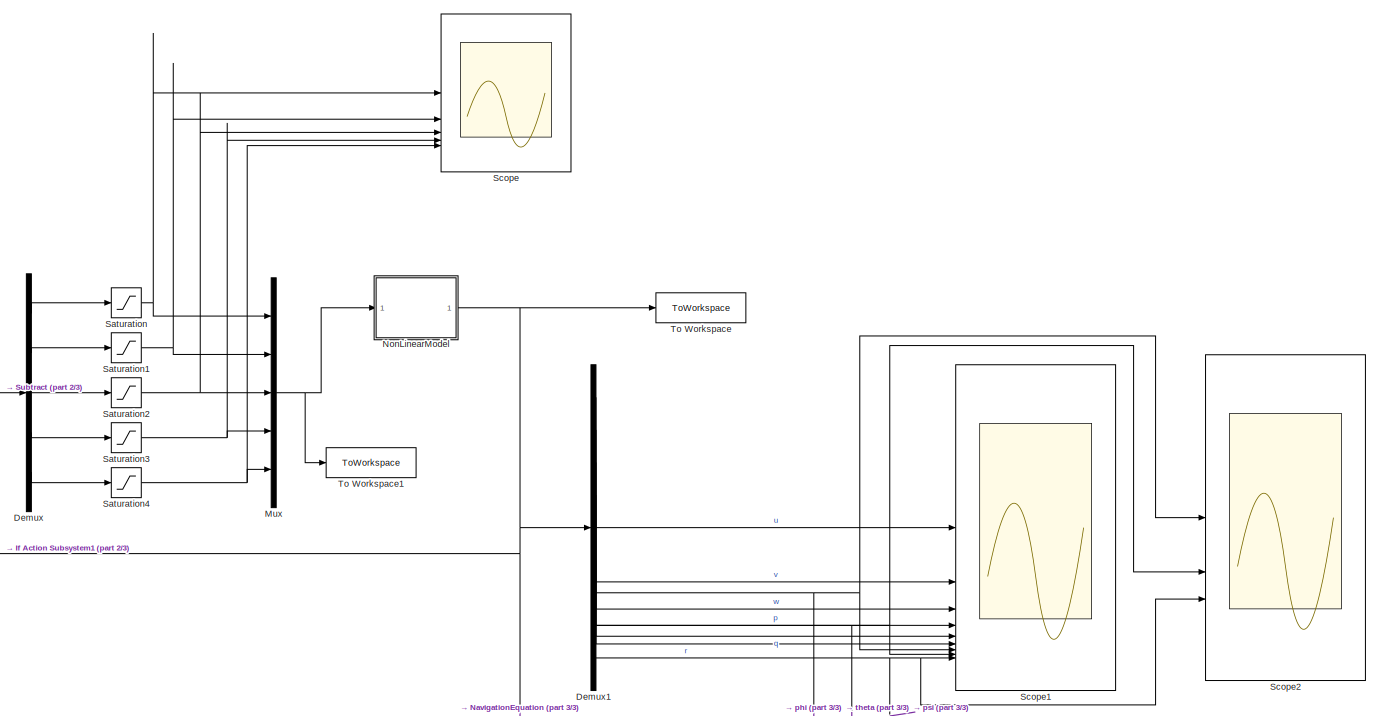
[diagram: root canvas - part 1/3, central region]
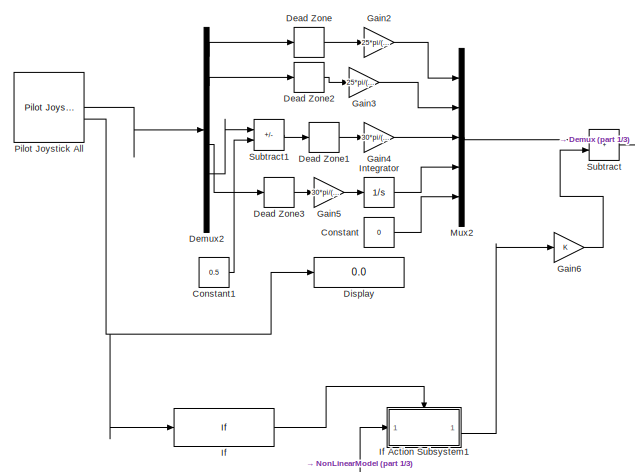
[diagram: root canvas - part 2/3, top left region]
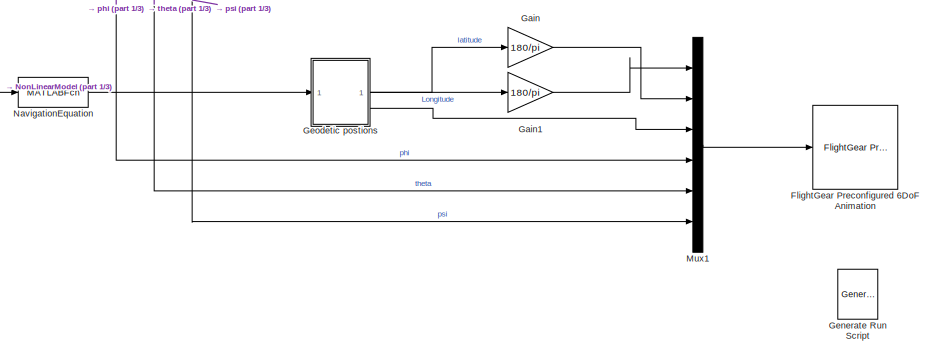
[diagram: root canvas - part 3/3, bottom right region]
MODEL slx_c88538f82919
KIND model
CONFIG AbsTol = auto
CONFIG EnableMultiTasking = off
CONFIG FixedStep = auto
CONFIG MaxStep = auto
CONFIG MinStep = auto
CONFIG RelTol = 1e-3
CONFIG SampleTimeConstraint = Unconstrained
CONFIG SolverName = VariableStepAuto
CONFIG StartTime = 0.0
CONFIG StopTime = TF
BLOCK [Constant] Constant
  Value = 0
BLOCK [Constant] Constant1
  Value = 0.5
BLOCK [DeadZone] Dead Zone
  LowerValue = -0.2
  UpperValue = 0.2
BLOCK [DeadZone] Dead Zone1
  LowerValue = -0.2
  UpperValue = 0.2
BLOCK [DeadZone] Dead Zone2
  LowerValue = -0.2
  UpperValue = 0.2
BLOCK [DeadZone] Dead Zone3
  LowerValue = -0.2
  UpperValue = 0.2
BLOCK [Demux] Demux
  Outputs = 5
BLOCK [Demux] Demux1
  Outputs = 9
BLOCK [Demux] Demux2
  Outputs = 6
BLOCK [Display] Display
  Decimation = 1
BLOCK [Reference] FlightGear Preconfigured 6DoF Animation  REF=aerolibfltsims/FlightGear
Preconfigured
6DoF Animation
  SourceBlock = aerolibfltsims/FlightGear\nPreconfigured\n6DoF Animation
  SourceType = FlightGearQuick6DoFAnimation
BLOCK [Gain] Gain
  Gain = 180/pi
BLOCK [Gain] Gain1
  Gain = 180/pi
BLOCK [Gain] Gain2
  Gain = 25*pi/(180*0.8)
BLOCK [Gain] Gain3
  Gain = 25*pi/(180*0.8)
BLOCK [Gain] Gain4
  Gain = 30*pi/(180*0.8)
BLOCK [Gain] Gain5
  Gain = 30*pi/(180*0.8)
BLOCK [Gain] Gain6
BLOCK [Reference] Generate Run Script  REF=aerolibfltsims/Generate
Run Script
  SourceBlock = aerolibfltsims/Generate\nRun Script
  SourceType = Generate FlightGear Run Script
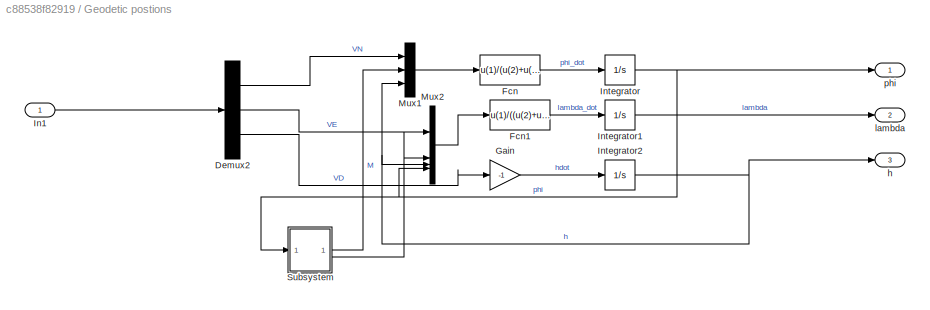
BLOCK [SubSystem] Geodetic postions
BLOCK [Demux] Geodetic postions/Demux2
  Outputs = 3
BLOCK [Fcn] Geodetic postions/Fcn
  Expr = u(1)/(u(2)+u(3))
BLOCK [Fcn] Geodetic postions/Fcn1
  Expr = u(1)/((u(2)+u(3))*cos(u(4)))
BLOCK [Gain] Geodetic postions/Gain
  Gain = -1
BLOCK [Inport] Geodetic postions/In1
BLOCK [Integrator] Geodetic postions/Integrator
  InitialCondition = phi0
BLOCK [Integrator] Geodetic postions/Integrator1
  InitialCondition = lambda0
BLOCK [Integrator] Geodetic postions/Integrator2
  InitialCondition = h0
BLOCK [Mux] Geodetic postions/Mux1
  DisplayOption = bar
  Inputs = 3
BLOCK [Mux] Geodetic postions/Mux2
  DisplayOption = bar
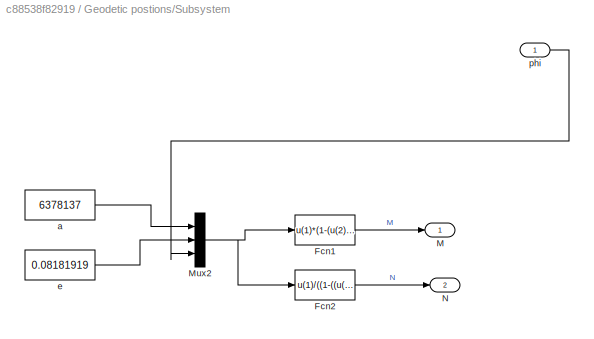
BLOCK [SubSystem] Geodetic postions/Subsystem
BLOCK [Fcn] Geodetic postions/Subsystem/Fcn1
  Expr = u(1)*(1-(u(2)*u(2)))/((1-((u(2)*sin(u(3))^2)))^1.5)
BLOCK [Fcn] Geodetic postions/Subsystem/Fcn2
  Expr = u(1)/((1-((u(2)*sin(u(3))^2)))^0.5)
BLOCK [Outport] Geodetic postions/Subsystem/M
BLOCK [Mux] Geodetic postions/Subsystem/Mux2
  DisplayOption = bar
  Inputs = 3
BLOCK [Outport] Geodetic postions/Subsystem/N
  Port = 2
BLOCK [Constant] Geodetic postions/Subsystem/a
  Value = 6378137
BLOCK [Constant] Geodetic postions/Subsystem/e
  Value = 0.08181919
BLOCK [Inport] Geodetic postions/Subsystem/phi
BLOCK [Outport] Geodetic postions/h
  Port = 3
BLOCK [Outport] Geodetic postions/lambda
  Port = 2
BLOCK [Outport] Geodetic postions/phi
BLOCK [If] If
  IfExpression = u1 == 2
  ShowElse = off
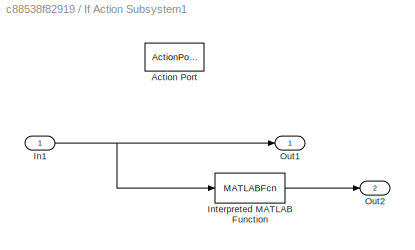
BLOCK [SubSystem] If Action Subsystem1
  TreatAsAtomicUnit = on
BLOCK [ActionPort] If Action Subsystem1/Action Port
  ActionPortLabel = if(u1 == 2)
BLOCK [Inport] If Action Subsystem1/In1
BLOCK [MATLABFcn] If Action Subsystem1/Interpreted MATLAB Function
  MATLABFcn = trimProj(u)
BLOCK [Outport] If Action Subsystem1/Out1
BLOCK [Outport] If Action Subsystem1/Out2
  Port = 2
BLOCK [Integrator] Integrator
BLOCK [Mux] Mux
  DisplayOption = bar
  Inputs = 5
BLOCK [Mux] Mux1
  DisplayOption = bar
  Inputs = 6
BLOCK [Mux] Mux2
  DisplayOption = bar
  Inputs = 5
BLOCK [MATLABFcn] NavigationEquation
  MATLABFcn = navigation_eqn(u(1:9))
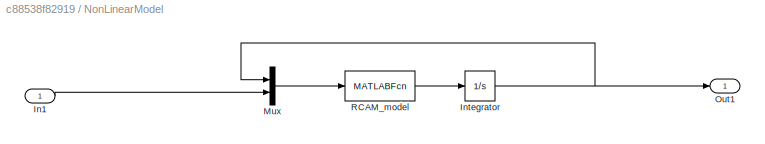
BLOCK [SubSystem] NonLinearModel
BLOCK [Inport] NonLinearModel/In1
BLOCK [Integrator] NonLinearModel/Integrator
  InitialCondition = x0
BLOCK [Mux] NonLinearModel/Mux
  DisplayOption = bar
  Inputs = 2
BLOCK [Outport] NonLinearModel/Out1
BLOCK [MATLABFcn] NonLinearModel/RCAM_model
  MATLABFcn = RCAM_model(u(1:9),u(10:14))
BLOCK [Reference] Pilot Joystick All  REF=aerolibanimutils/Pilot Joystick
  LibrarySourceBlock = aerolibanimutils/Pilot Joystick All
  SourceBlock = aerolibanimutils/Pilot Joystick
  SourceType = PilotJoystick
BLOCK [Saturate] Saturation
  LowerLimit = u1min
  UpperLimit = u1max
BLOCK [Saturate] Saturation1
  LowerLimit = u2min
  UpperLimit = u2max
BLOCK [Saturate] Saturation2
  LowerLimit = u3min
  UpperLimit = u3max
BLOCK [Saturate] Saturation3
  LowerLimit = u4min
  UpperLimit = u4max
BLOCK [Saturate] Saturation4
  LowerLimit = u5min
  UpperLimit = u5max
BLOCK [Scope] Scope
  Floating = off
  NumInputPorts = 5
  ScopeSpecificationString = Simulink.scopes.TimeScopeBlockCfg('CurrentConfiguration', extmgr.ConfigurationSet(extmgr.Configuration('Core','General UI',true),extmgr.Configuration('Core','Source UI',true),extmgr.Configuration('Sources','WiredSimulink',true),extmgr.Configuration('Visuals','Time Domain',true,'SerializedDisplays',{struct('MinYLimReal','-0.01059','MaxYLimReal','0.0953','YLabelReal','','MinYLimMag','0.00000','MaxYL...<+4733ch>
BLOCK [Scope] Scope1
  Floating = off
  NumInputPorts = 9
  ScopeSpecificationString = Simulink.scopes.TimeScopeBlockCfg('CurrentConfiguration', extmgr.ConfigurationSet(extmgr.Configuration('Core','General UI',true),extmgr.Configuration('Core','Source UI',true),extmgr.Configuration('Sources','WiredSimulink',true,'DataLoggingVariableName','ScopeData1'),extmgr.Configuration('Visuals','Time Domain',true,'SerializedDisplays',{struct('MinYLimReal','58.85188','MaxYLimReal','320.31804','YL...<+4868ch>
BLOCK [Scope] Scope2
  Floating = off
  NumInputPorts = 3
  ScopeSpecificationString = Simulink.scopes.TimeScopeBlockCfg('CurrentConfiguration', extmgr.ConfigurationSet(extmgr.Configuration('Core','General UI',true),extmgr.Configuration('Core','Source UI',true),extmgr.Configuration('Sources','WiredSimulink',true,'DataLoggingVariableName','ScopeData2'),extmgr.Configuration('Visuals','Time Domain',true,'SerializedDisplays',{struct('MinYLimReal','-1.76417','MaxYLimReal','6.83006','YLab...<+2714ch>
BLOCK [Sum] Subtract
  IconShape = rectangular
BLOCK [Sum] Subtract1
  IconShape = rectangular
  Inputs = +-
BLOCK [ToWorkspace] To Workspace
  FixptAsFi = on
  MaxDataPoints = inf
  SampleTime = -1
  SaveFormat = Timeseries
  VariableName = simXout
BLOCK [ToWorkspace] To Workspace1
  FixptAsFi = on
  MaxDataPoints = inf
  SampleTime = -1
  SaveFormat = Timeseries
  VariableName = simUout
LINE Constant1:1 -> Subtract1:2
LINE Constant:1 -> Mux2:5
LINE Dead Zone1:1 -> Gain4:1
LINE Dead Zone2:1 -> Gain3:1
LINE Dead Zone3:1 -> Gain5:1
LINE Dead Zone:1 -> Gain2:1
LINE Demux1:1 -> Scope1:1
LINE Demux1:2 -> Scope1:2
LINE Demux1:3 -> Scope1:3
LINE Demux1:4 -> Scope1:4
LINE Demux1:5 -> Scope1:5
LINE Demux1:6 -> Scope1:6
NET Demux1:7 -> Mux1:4, Scope1:7, Scope2:1
NET Demux1:8 -> Mux1:5, Scope1:8, Scope2:2
NET Demux1:9 -> Mux1:6, Scope1:9, Scope2:3
LINE Demux2:1 -> Dead Zone:1
LINE Demux2:2 -> Dead Zone2:1
LINE Demux2:4 -> Dead Zone3:1
LINE Demux2:5 -> Subtract1:1
LINE Demux:1 -> Saturation:1
LINE Demux:2 -> Saturation1:1
LINE Demux:3 -> Saturation2:1
LINE Demux:4 -> Saturation3:1
LINE Demux:5 -> Saturation4:1
LINE Gain1:1 -> Mux1:1
LINE Gain2:1 -> Mux2:1
LINE Gain3:1 -> Mux2:2
LINE Gain4:1 -> Mux2:3
LINE Gain5:1 -> Integrator:1
LINE Gain6:1 -> Subtract:2
LINE Gain:1 -> Mux1:2
LINE Geodetic postions/Demux2:1 -> Geodetic postions/Mux1:1
LINE Geodetic postions/Demux2:2 -> Geodetic postions/Mux2:1
LINE Geodetic postions/Demux2:3 -> Geodetic postions/Gain:1
LINE Geodetic postions/Fcn1:1 -> Geodetic postions/Integrator1:1
LINE Geodetic postions/Fcn:1 -> Geodetic postions/Integrator:1
LINE Geodetic postions/Gain:1 -> Geodetic postions/Integrator2:1
LINE Geodetic postions/In1:1 -> Geodetic postions/Demux2:1
LINE Geodetic postions/Integrator1:1 -> Geodetic postions/lambda:1
NET Geodetic postions/Integrator2:1 -> Geodetic postions/Mux1:3, Geodetic postions/Mux2:3, Geodetic postions/h:1
NET Geodetic postions/Integrator:1 -> Geodetic postions/Mux2:4, Geodetic postions/Subsystem:1, Geodetic postions/phi:1
LINE Geodetic postions/Mux1:1 -> Geodetic postions/Fcn:1
LINE Geodetic postions/Mux2:1 -> Geodetic postions/Fcn1:1
LINE Geodetic postions/Subsystem/Fcn1:1 -> Geodetic postions/Subsystem/M:1
LINE Geodetic postions/Subsystem/Fcn2:1 -> Geodetic postions/Subsystem/N:1
NET Geodetic postions/Subsystem/Mux2:1 -> Geodetic postions/Subsystem/Fcn1:1, Geodetic postions/Subsystem/Fcn2:1
LINE Geodetic postions/Subsystem/a:1 -> Geodetic postions/Subsystem/Mux2:1
LINE Geodetic postions/Subsystem/e:1 -> Geodetic postions/Subsystem/Mux2:2
LINE Geodetic postions/Subsystem/phi:1 -> Geodetic postions/Subsystem/Mux2:3
LINE Geodetic postions/Subsystem:1 -> Geodetic postions/Mux1:2
LINE Geodetic postions/Subsystem:2 -> Geodetic postions/Mux2:2
LINE Geodetic postions:1 -> Gain:1
LINE Geodetic postions:2 -> Gain1:1
LINE Geodetic postions:3 -> Mux1:3
NET If Action Subsystem1/In1:1 -> If Action Subsystem1/Interpreted MATLAB Function:1, If Action Subsystem1/Out1:1
LINE If Action Subsystem1/Interpreted MATLAB Function:1 -> If Action Subsystem1/Out2:1
LINE If Action Subsystem1:2 -> Gain6:1
LINE If:1 -> If Action Subsystem1:ifaction
LINE Integrator:1 -> Mux2:4
LINE Mux1:1 -> FlightGear Preconfigured 6DoF Animation:1
LINE Mux2:1 -> Subtract:1
NET Mux:1 -> NonLinearModel:1, To Workspace1:1
LINE NavigationEquation:1 -> Geodetic postions:1
LINE NonLinearModel/In1:1 -> NonLinearModel/Mux:2
NET NonLinearModel/Integrator:1 -> NonLinearModel/Mux:1, NonLinearModel/Out1:1
LINE NonLinearModel/Mux:1 -> NonLinearModel/RCAM_model:1
LINE NonLinearModel/RCAM_model:1 -> NonLinearModel/Integrator:1
NET NonLinearModel:1 -> Demux1:1, If Action Subsystem1:1, NavigationEquation:1, To Workspace:1
LINE Pilot Joystick All:1 -> Demux2:1
NET Pilot Joystick All:2 -> Display:1, If:1
NET Saturation1:1 -> Mux:2, Scope:2
NET Saturation2:1 -> Mux:3, Scope:3
NET Saturation3:1 -> Mux:4, Scope:4
NET Saturation4:1 -> Mux:5, Scope:5
NET Saturation:1 -> Mux:1, Scope:1
LINE Subtract1:1 -> Dead Zone1:1
LINE Subtract:1 -> Demux:1
note: NET lines group one-source signal fan-out (src -> all destinations, sorted); 1:1 wires keep LINE
